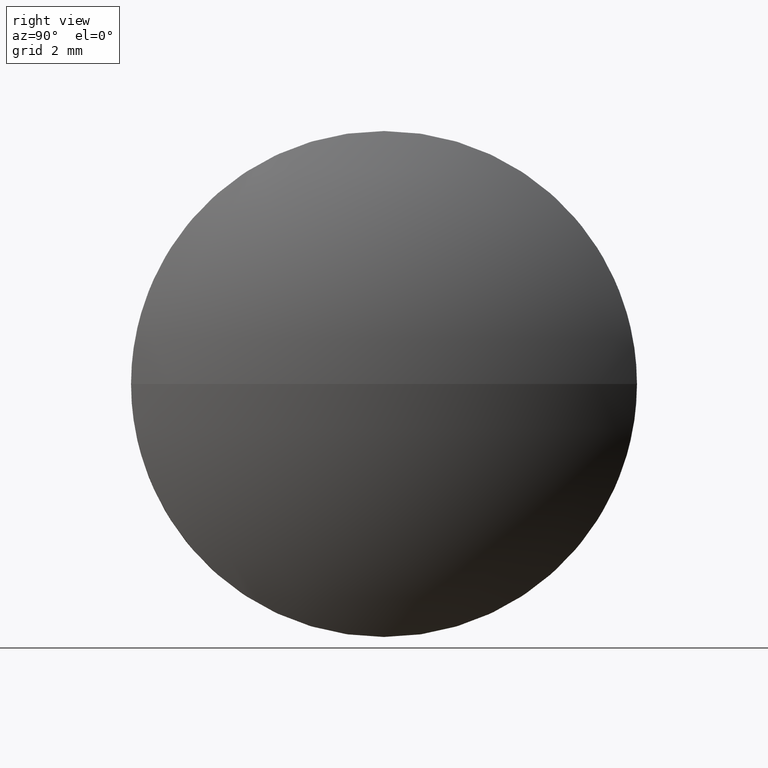
[diagram: clean part render]
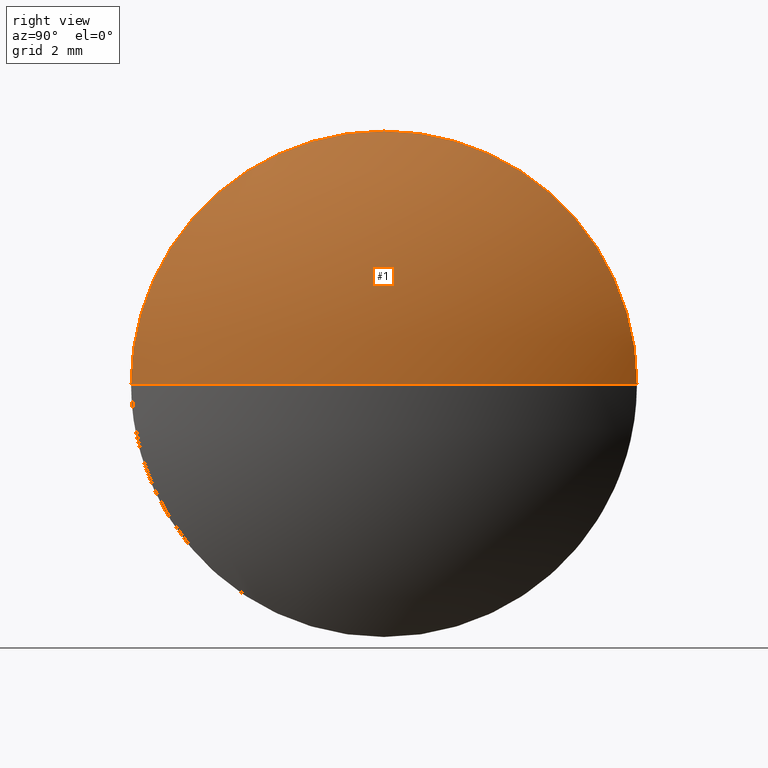
[diagram: same view with one face highlighted and labeled with its STEP entity id]
A machine part, right view. The second image highlights one B-rep face of the part: STEP entity #1.
In plain terms, the highlighted spherical surface has radius 9.0833 mm.
Its self-contained STEP definition (entity closure, byte-faithful):
#1 = ADVANCED_FACE ( 'NONE', ( #119 ), #17, .T. ) ;
#4 = ORIENTED_EDGE ( 'NONE', *, *, #5, .T. ) ;
#5 = EDGE_CURVE ( 'NONE', #10, #69, #81, .T. ) ;
#10 = VERTEX_POINT ( 'NONE', #103 ) ;
#16 = AXIS2_PLACEMENT_3D ( 'NONE', #104, #153, #181 ) ;
#17 = SPHERICAL_SURFACE ( 'NONE', #98, 9.083333333333387200 ) ;
#20 = EDGE_CURVE ( 'NONE', #10, #61, #177, .T. ) ;
#22 = CARTESIAN_POINT ( 'NONE',  ( 366.1618154651758900, 37.06401895449352000, 0.0000000000000000000 ) ) ;
#24 = CARTESIAN_POINT ( 'NONE',  ( 366.1618154651758900, 32.06401895449350500, -6.123233995736766300E-016 ) ) ;
#25 = DIRECTION ( 'NONE',  ( 0.0000000000000000000, 1.000000000000000000, 1.224646799147353500E-016 ) ) ;
#37 = ORIENTED_EDGE ( 'NONE', *, *, #20, .F. ) ;
#43 = CARTESIAN_POINT ( 'NONE',  ( 366.1618154651758900, 37.06401895449352000, 4.999999999999997300 ) ) ;
#49 = AXIS2_PLACEMENT_3D ( 'NONE', #22, #178, #101 ) ;
#52 = ORIENTED_EDGE ( 'NONE', *, *, #80, .F. ) ;
#53 = EDGE_CURVE ( 'NONE', #86, #69, #164, .T. ) ;
#61 = VERTEX_POINT ( 'NONE', #24 ) ;
#62 = CARTESIAN_POINT ( 'NONE',  ( 366.1618154651758900, 37.06401895449352000, 0.0000000000000000000 ) ) ;
#69 = VERTEX_POINT ( 'NONE', #161 ) ;
#72 = CARTESIAN_POINT ( 'NONE',  ( 358.5784821318425200, 37.06401895449350500, 0.0000000000000000000 ) ) ;
#74 = CARTESIAN_POINT ( 'NONE',  ( 358.5784821318425200, 37.06401895449350500, 0.0000000000000000000 ) ) ;
#76 = CIRCLE ( 'NONE', #144, 4.999999999999997300 ) ;
#80 = EDGE_CURVE ( 'NONE', #61, #86, #76, .T. ) ;
#81 = CIRCLE ( 'NONE', #16, 9.083333333333387200 ) ;
#86 = VERTEX_POINT ( 'NONE', #43 ) ;
#87 = EDGE_LOOP ( 'NONE', ( #37, #4, #167, #52 ) ) ;
#88 = AXIS2_PLACEMENT_3D ( 'NONE', #72, #171, #25 ) ;
#98 = AXIS2_PLACEMENT_3D ( 'NONE', #74, #142, #179 ) ;
#101 = DIRECTION ( 'NONE',  ( 0.0000000000000000000, 0.0000000000000000000, 1.000000000000000000 ) ) ;
#103 = CARTESIAN_POINT ( 'NONE',  ( 367.6618154651758900, 37.06401895449350500, 0.0000000000000000000 ) ) ;
#104 = CARTESIAN_POINT ( 'NONE',  ( 358.5784821318425200, 37.06401895449350500, 0.0000000000000000000 ) ) ;
#107 = DIRECTION ( 'NONE',  ( 0.0000000000000000000, 0.0000000000000000000, 1.000000000000000000 ) ) ;
#119 = FACE_OUTER_BOUND ( 'NONE', #87, .T. ) ;
#142 = DIRECTION ( 'NONE',  ( -0.0000000000000000000, 0.0000000000000000000, -1.000000000000000000 ) ) ;
#144 = AXIS2_PLACEMENT_3D ( 'NONE', #62, #183, #107 ) ;
#153 = DIRECTION ( 'NONE',  ( -0.0000000000000000000, 0.0000000000000000000, 1.000000000000000000 ) ) ;
#161 = CARTESIAN_POINT ( 'NONE',  ( 366.1618154651758900, 42.06401895449352000, 0.0000000000000000000 ) ) ;
#164 = CIRCLE ( 'NONE', #49, 4.999999999999997300 ) ;
#167 = ORIENTED_EDGE ( 'NONE', *, *, #53, .F. ) ;
#171 = DIRECTION ( 'NONE',  ( 0.0000000000000000000, 1.224646799147353200E-016, -1.000000000000000000 ) ) ;
#177 = CIRCLE ( 'NONE', #88, 9.083333333333387200 ) ;
#178 = DIRECTION ( 'NONE',  ( -1.000000000000000000, -0.0000000000000000000, -0.0000000000000000000 ) ) ;
#179 = DIRECTION ( 'NONE',  ( 0.0000000000000000000, 1.000000000000000000, 0.0000000000000000000 ) ) ;
#181 = DIRECTION ( 'NONE',  ( 1.000000000000000000, 0.0000000000000000000, 0.0000000000000000000 ) ) ;
#183 = DIRECTION ( 'NONE',  ( -1.000000000000000000, -0.0000000000000000000, -0.0000000000000000000 ) ) ;